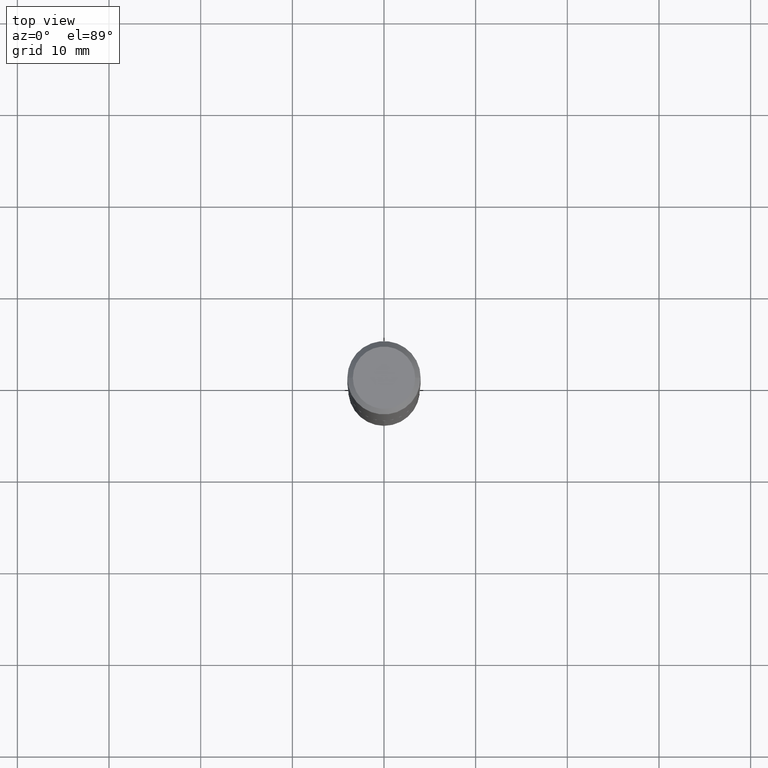
[diagram: clean part render]
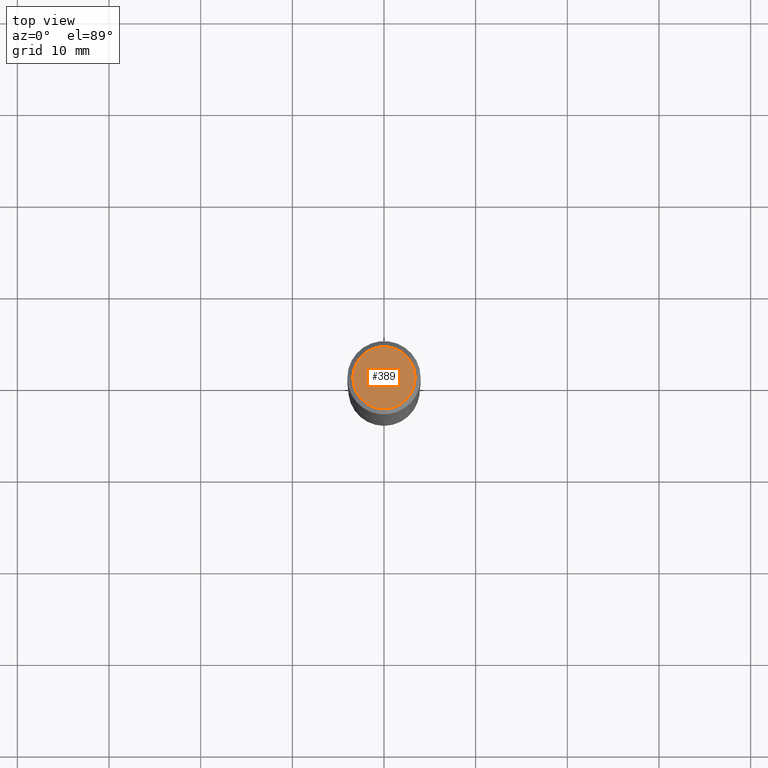
[diagram: same view with one face highlighted and labeled with its STEP entity id]
A machine part, top view. The second image highlights one B-rep face of the part: STEP entity #389.
In plain terms, the highlighted planar face has unit normal (0, -0, -1).
Its self-contained STEP definition (entity closure, byte-faithful):
#3 = CIRCLE ( 'NONE', #175, 0.1338749999999999940 ) ;
#14 = DIRECTION ( 'NONE',  ( -2.445468806185136597E-29, 3.491481338843145583E-15, 1.000000000000000000 ) ) ;
#24 = VERTEX_POINT ( 'NONE', #486 ) ;
#40 = CIRCLE ( 'NONE', #190, 0.1338749999999999940 ) ;
#57 = PLANE ( 'NONE',  #243 ) ;
#61 = DIRECTION ( 'NONE',  ( -2.445468806185136597E-29, 3.491481338843145583E-15, 1.000000000000000000 ) ) ;
#142 = EDGE_LOOP ( 'NONE', ( #268, #429 ) ) ;
#175 = AXIS2_PLACEMENT_3D ( 'NONE', #357, #14, #282 ) ;
#190 = AXIS2_PLACEMENT_3D ( 'NONE', #341, #61, #217 ) ;
#214 = CARTESIAN_POINT ( 'NONE',  ( -5.014852121625163022E-47, 7.159879756154476955E-33, 2.050671065172241055E-18 ) ) ;
#217 = DIRECTION ( 'NONE',  ( 1.000000000000000000, -6.982962677686266711E-15, 4.876170806578254279E-29 ) ) ;
#240 = FACE_OUTER_BOUND ( 'NONE', #142, .T. ) ;
#243 = AXIS2_PLACEMENT_3D ( 'NONE', #214, #400, #322 ) ;
#268 = ORIENTED_EDGE ( 'NONE', *, *, #286, .T. ) ;
#275 = VERTEX_POINT ( 'NONE', #382 ) ;
#282 = DIRECTION ( 'NONE',  ( 1.000000000000000000, -6.982962677686266711E-15, 4.876170806578254279E-29 ) ) ;
#286 = EDGE_CURVE ( 'NONE', #24, #275, #40, .T. ) ;
#322 = DIRECTION ( 'NONE',  ( -1.000000000000000000, 6.982962677686265922E-15, -4.876176775795935793E-29 ) ) ;
#341 = CARTESIAN_POINT ( 'NONE',  ( -1.002970424325032604E-46, 1.431975951230895391E-32, 4.101342130344482109E-18 ) ) ;
#357 = CARTESIAN_POINT ( 'NONE',  ( -1.002970424325032604E-46, 1.431975951230895391E-32, 4.101342130344482109E-18 ) ) ;
#360 = EDGE_CURVE ( 'NONE', #275, #24, #3, .T. ) ;
#382 = CARTESIAN_POINT ( 'NONE',  ( 0.1338749999999999940, -1.040731925365424925E-15, 4.101342130351390035E-18 ) ) ;
#389 = ADVANCED_FACE ( 'NONE', ( #240 ), #57, .F. ) ;
#400 = DIRECTION ( 'NONE',  ( 2.438088387897960049E-29, -3.491481338843145188E-15, -1.000000000000000000 ) ) ;
#429 = ORIENTED_EDGE ( 'NONE', *, *, #360, .T. ) ;
#486 = CARTESIAN_POINT ( 'NONE',  ( -0.1338749999999999940, 9.760872517903331886E-16, 4.101342130337800673E-18 ) ) ;